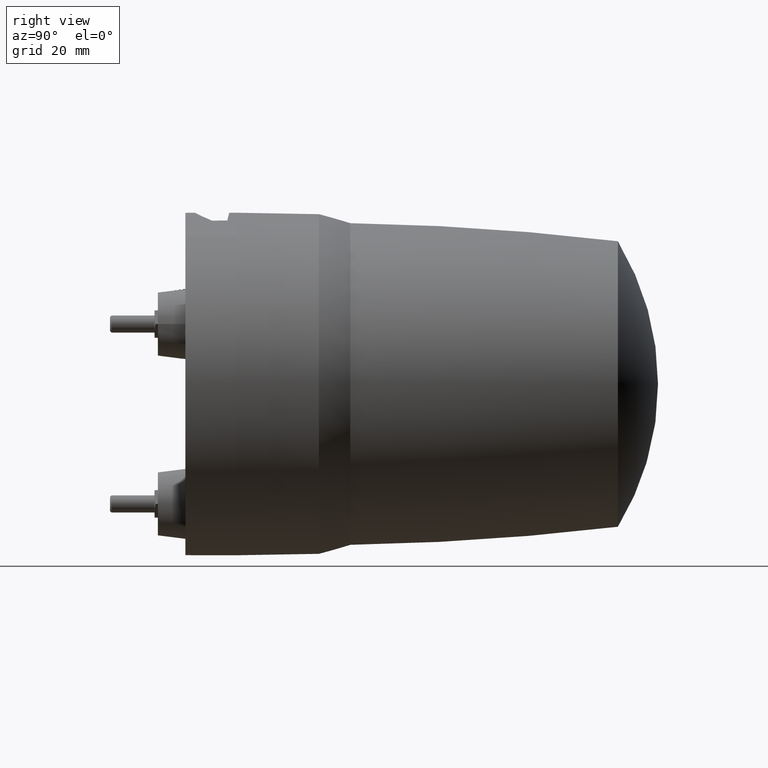
[diagram: clean part render]
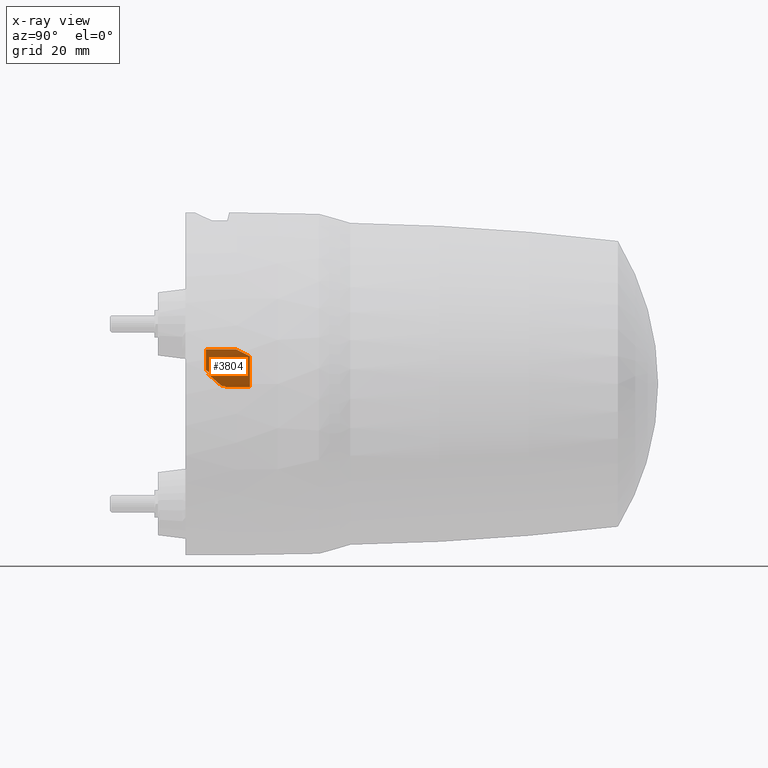
[diagram: x-ray — body ghosted, one internal face saturated and labeled with its STEP entity id]
A machine part, right view, then the same camera in x-ray: the body is ghosted and one INTERNAL B-rep face — a face not visible from any outside direction — is saturated and labeled: STEP entity #3804.
In plain terms, the highlighted planar face has unit normal (-0.866, 0, 0.5).
Its self-contained STEP definition (entity closure, byte-faithful):
#99 = CARTESIAN_POINT ( 'NONE',  ( -2.159235540150354904, 17.86455700599530161, 10.08009433895098184 ) ) ;
#115 = VERTEX_POINT ( 'NONE', #1437 ) ;
#260 = ORIENTED_EDGE ( 'NONE', *, *, #2039, .F. ) ;
#339 = DIRECTION ( 'NONE',  ( -5.473892273054959751E-17, -1.000000000000000000, 1.095502084202361979E-16 ) ) ;
#378 = LINE ( 'NONE', #8603, #6511 ) ;
#429 = LINE ( 'NONE', #5904, #4405 ) ;
#708 = DIRECTION ( 'NONE',  ( -0.8660254037844541397, -1.631604166435134380E-14, 0.4999999999999735767 ) ) ;
#733 = CARTESIAN_POINT ( 'NONE',  ( -6.179945541815389909, 10.17304399504486057, 3.116020333566984934 ) ) ;
#826 = CIRCLE ( 'NONE', #5223, 0.7999999917448066267 ) ;
#831 = CARTESIAN_POINT ( 'NONE',  ( -8.509237540071350026, 14.83161299984173986, -0.9184317530758558945 ) ) ;
#865 =( BOUNDED_CURVE ( )  B_SPLINE_CURVE ( 3, ( #5068, #3024, #6360, #8391 ),
 .UNSPECIFIED., .F., .F. ) 
 B_SPLINE_CURVE_WITH_KNOTS ( ( 4, 4 ),
 ( 4.095753014758045061E-12, 0.0004267380037659210257 ),
 .UNSPECIFIED. ) 
 CURVE ( )  GEOMETRIC_REPRESENTATION_ITEM ( )  RATIONAL_B_SPLINE_CURVE ( ( 1.000000000000000000, 0.9764906257234879927, 0.9764906257234879927, 1.000000000000000000 ) ) 
 REPRESENTATION_ITEM ( '' )  );
#1125 = CARTESIAN_POINT ( 'NONE',  ( -2.159235540150354904, 17.86455700299764970, 10.08009433895098184 ) ) ;
#1192 = ORIENTED_EDGE ( 'NONE', *, *, #8188, .T. ) ;
#1405 = DIRECTION ( 'NONE',  ( -0.4999999999999720224, 1.301042620408053309E-14, -0.8660254037844548058 ) ) ;
#1437 = CARTESIAN_POINT ( 'NONE',  ( -5.568422538805099187, 8.950006000000000128, 4.175209244777880357 ) ) ;
#1461 = ORIENTED_EDGE ( 'NONE', *, *, #4669, .T. ) ;
#1569 = VECTOR ( 'NONE', #3418, 1000.000000000000114 ) ;
#1603 = DIRECTION ( 'NONE',  ( 0.3535530066258474879, -0.7071075491205798258, 0.6123717706446878406 ) ) ;
#1927 = CARTESIAN_POINT ( 'NONE',  ( -8.235375097211520057, 13.43537711396998091, -0.4440880877577200181 ) ) ;
#1937 = VECTOR ( 'NONE', #3245, 1000.000000000000114 ) ;
#2039 = EDGE_CURVE ( 'NONE', #6660, #4645, #5481, .T. ) ;
#2040 = VERTEX_POINT ( 'NONE', #6057 ) ;
#2067 = ORIENTED_EDGE ( 'NONE', *, *, #4931, .T. ) ;
#2106 = AXIS2_PLACEMENT_3D ( 'NONE', #7495, #6085, #2721 ) ;
#2453 = CARTESIAN_POINT ( 'NONE',  ( -5.334236540150419259, 21.85000000000000142, 4.580831292869030236 ) ) ;
#2621 = ORIENTED_EDGE ( 'NONE', *, *, #7275, .T. ) ;
#2704 = DIRECTION ( 'NONE',  ( -0.2500004414439048750, 0.8660248940483297186, -0.4330134664954798374 ) ) ;
#2721 = DIRECTION ( 'NONE',  ( 1.179877650517543817E-16, 1.000000000000000000, 0.000000000000000000 ) ) ;
#2816 = DIRECTION ( 'NONE',  ( -0.3535500572672663488, -0.7071134477757237136, -0.6123666622057747366 ) ) ;
#2884 = ORIENTED_EDGE ( 'NONE', *, *, #4831, .T. ) ;
#2885 = CARTESIAN_POINT ( 'NONE',  ( -8.235375098394619897, 13.43537711587990202, -0.4440880898069139993 ) ) ;
#3024 = CARTESIAN_POINT ( 'NONE',  ( -8.333611369150483839, 14.28351939699999207, -0.6142383019021560031 ) ) ;
#3087 = EDGE_CURVE ( 'NONE', #6695, #6962, #826, .T. ) ;
#3211 = LINE ( 'NONE', #8623, #4891 ) ;
#3245 = DIRECTION ( 'NONE',  ( -0.5000000000000099920, -6.750380211652858112E-17, -0.8660254037844328234 ) ) ;
#3416 = PLANE ( 'NONE',  #2106 ) ;
#3418 = DIRECTION ( 'NONE',  ( 0.3535545488749539667, -0.7071044646156118274, 0.6123744418984978788 ) ) ;
#3438 = ORIENTED_EDGE ( 'NONE', *, *, #4506, .F. ) ;
#3500 = LINE ( 'NONE', #733, #1569 ) ;
#3804 = ADVANCED_FACE ( 'NONE', ( #8738 ), #3416, .T. ) ;
#3872 = LINE ( 'NONE', #2453, #1937 ) ;
#4405 = VECTOR ( 'NONE', #6580, 1000.000000000000000 ) ;
#4462 = VERTEX_POINT ( 'NONE', #4592 ) ;
#4489 = EDGE_LOOP ( 'NONE', ( #2884, #1192, #3438, #1461, #4512, #7450, #260, #2067, #5748, #5839, #2621 ) ) ;
#4506 = EDGE_CURVE ( 'NONE', #4980, #6324, #3211, .T. ) ;
#4512 = ORIENTED_EDGE ( 'NONE', *, *, #3087, .T. ) ;
#4554 = VECTOR ( 'NONE', #1603, 1000.000000000000114 ) ;
#4592 = CARTESIAN_POINT ( 'NONE',  ( -3.309736540856585307, 21.85000000000000142, 8.087368151569018337 ) ) ;
#4645 = VERTEX_POINT ( 'NONE', #6888 ) ;
#4669 = EDGE_CURVE ( 'NONE', #4980, #6695, #865, .T. ) ;
#4831 = EDGE_CURVE ( 'NONE', #4462, #4838, #3872, .T. ) ;
#4838 = VERTEX_POINT ( 'NONE', #5958 ) ;
#4859 = VERTEX_POINT ( 'NONE', #1125 ) ;
#4867 = EDGE_CURVE ( 'NONE', #4859, #2040, #429, .T. ) ;
#4891 = VECTOR ( 'NONE', #5263, 1000.000000000000114 ) ;
#4931 = EDGE_CURVE ( 'NONE', #6660, #115, #3500, .T. ) ;
#4980 = VERTEX_POINT ( 'NONE', #8124 ) ;
#5068 = CARTESIAN_POINT ( 'NONE',  ( -8.297104420206029118, 14.40736176563463999, -0.5510064115010520069 ) ) ;
#5223 = AXIS2_PLACEMENT_3D ( 'NONE', #6149, #708, #1405 ) ;
#5263 = DIRECTION ( 'NONE',  ( -0.3535596406165645300, 0.7070942809190039480, -0.6123832610536660281 ) ) ;
#5481 = LINE ( 'NONE', #6105, #5778 ) ;
#5592 = LINE ( 'NONE', #2885, #4554 ) ;
#5725 = EDGE_CURVE ( 'NONE', #6962, #4645, #5592, .T. ) ;
#5729 = CARTESIAN_POINT ( 'NONE',  ( -8.509237540150481394, 15.40000299999999989, -0.9184317532129300243 ) ) ;
#5748 = ORIENTED_EDGE ( 'NONE', *, *, #8143, .F. ) ;
#5778 = VECTOR ( 'NONE', #2816, 1000.000000000000227 ) ;
#5839 = ORIENTED_EDGE ( 'NONE', *, *, #4867, .F. ) ;
#5904 = CARTESIAN_POINT ( 'NONE',  ( -2.159235540150354904, 13.40728149999999985, 10.08009433895098184 ) ) ;
#5958 = CARTESIAN_POINT ( 'NONE',  ( -8.509237534431211003, 21.85000000000000142, -0.9184317534068479061 ) ) ;
#6057 = CARTESIAN_POINT ( 'NONE',  ( -2.159235540150354904, 8.950006000000000128, 10.08009433895098184 ) ) ;
#6085 = DIRECTION ( 'NONE',  ( -0.8660254037844329345, 1.021804018705683938E-16, 0.5000000000000101030 ) ) ;
#6105 = CARTESIAN_POINT ( 'NONE',  ( -6.286011290150439912, 9.960908500000000387, 2.932309068507879868 ) ) ;
#6149 = CARTESIAN_POINT ( 'NONE',  ( -7.952532072764355142, 14.00106190467410983, 0.04581040115126856077 ) ) ;
#6179 = CARTESIAN_POINT ( 'NONE',  ( -6.179945541186059543, 10.17304399792872083, 3.116020334657020108 ) ) ;
#6324 = VERTEX_POINT ( 'NONE', #831 ) ;
#6360 = CARTESIAN_POINT ( 'NONE',  ( -8.352532068150479105, 14.14482549500000452, -0.6470099138848722786 ) ) ;
#6396 = LINE ( 'NONE', #5729, #8483 ) ;
#6511 = VECTOR ( 'NONE', #8469, 1000.000000000000114 ) ;
#6580 = DIRECTION ( 'NONE',  ( -5.473892273054959751E-17, -1.000000000000000000, 1.095502084202361979E-16 ) ) ;
#6660 = VERTEX_POINT ( 'NONE', #6179 ) ;
#6695 = VERTEX_POINT ( 'NONE', #7686 ) ;
#6888 = CARTESIAN_POINT ( 'NONE',  ( -6.392077041159900830, 9.748772997981049571, 2.748597798816545090 ) ) ;
#6962 = VERTEX_POINT ( 'NONE', #1927 ) ;
#7275 = EDGE_CURVE ( 'NONE', #4859, #4462, #8063, .T. ) ;
#7450 = ORIENTED_EDGE ( 'NONE', *, *, #5725, .T. ) ;
#7495 = CARTESIAN_POINT ( 'NONE',  ( -2.159235540150354904, 21.85000000000000142, 10.08009433895098184 ) ) ;
#7631 = VECTOR ( 'NONE', #2704, 1000.000000000000114 ) ;
#7686 = CARTESIAN_POINT ( 'NONE',  ( -8.352532068150480882, 14.00106190467412048, -0.6470099138848709464 ) ) ;
#8063 = LINE ( 'NONE', #99, #7631 ) ;
#8124 = CARTESIAN_POINT ( 'NONE',  ( -8.297104420206029118, 14.40736176563463999, -0.5510064115010520069 ) ) ;
#8143 = EDGE_CURVE ( 'NONE', #2040, #115, #378, .T. ) ;
#8188 = EDGE_CURVE ( 'NONE', #4838, #6324, #6396, .T. ) ;
#8391 = CARTESIAN_POINT ( 'NONE',  ( -8.352532068150480882, 14.00106190467412048, -0.6470099138848709464 ) ) ;
#8469 = DIRECTION ( 'NONE',  ( -0.5000000000000099920, -6.750380211652858112E-17, -0.8660254037844328234 ) ) ;
#8483 = VECTOR ( 'NONE', #339, 1000.000000000000000 ) ;
#8603 = CARTESIAN_POINT ( 'NONE',  ( -3.863829040150394967, 8.950006000000000128, 7.127651790699339962 ) ) ;
#8623 = CARTESIAN_POINT ( 'NONE',  ( -8.403170980650479294, 14.61948738100000078, -0.7347190831749029760 ) ) ;
#8738 = FACE_OUTER_BOUND ( 'NONE', #4489, .T. ) ;